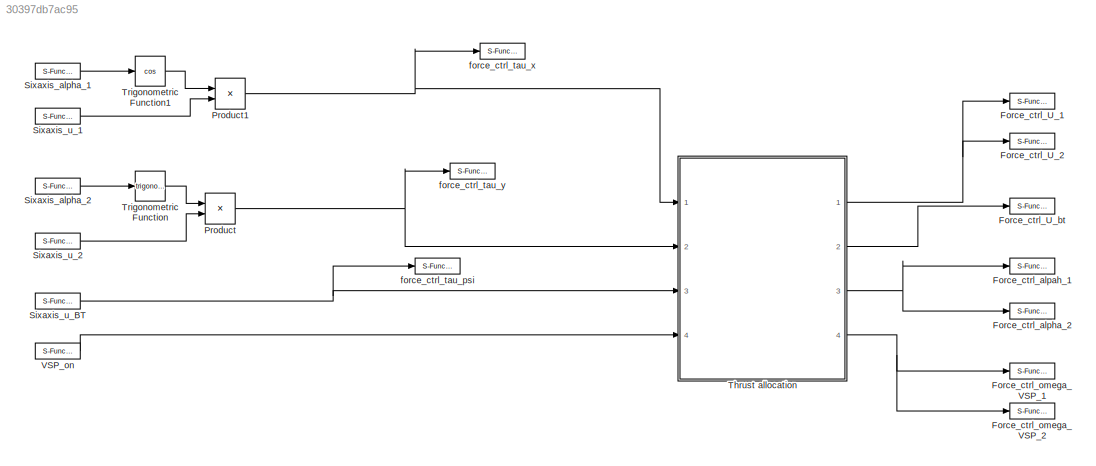
MODEL slx_30397db7ac95
KIND model
BLOCK [S-Function] Force_ctrl_U_1
  CopyFcn = NIVeriStand_MDL_functions('', 'IO_copy');
  DeleteFcn = NIVeriStand_MDL_functions('', 'IO_delete');
  EnableBusSupport = off
  FunctionName = NIVeriStandIO
  MoveFcn = set_param(gcb, 'Mask', 'on');
  Parameters = width dtype portnum stime stype btype
  Ports = [1]
  Priority = 4
BLOCK [S-Function] Force_ctrl_U_2
  CopyFcn = NIVeriStand_MDL_functions('', 'IO_copy');
  DeleteFcn = NIVeriStand_MDL_functions('', 'IO_delete');
  EnableBusSupport = off
  FunctionName = NIVeriStandIO
  MoveFcn = set_param(gcb, 'Mask', 'on');
  Parameters = width dtype portnum stime stype btype
  Ports = [1]
  Priority = 5
BLOCK [S-Function] Force_ctrl_U_bt
  CopyFcn = NIVeriStand_MDL_functions('', 'IO_copy');
  DeleteFcn = NIVeriStand_MDL_functions('', 'IO_delete');
  EnableBusSupport = off
  FunctionName = NIVeriStandIO
  MoveFcn = set_param(gcb, 'Mask', 'on');
  Parameters = width dtype portnum stime stype btype
  Ports = [1]
  Priority = 1
BLOCK [S-Function] Force_ctrl_alpah_1
  CopyFcn = NIVeriStand_MDL_functions('', 'IO_copy');
  DeleteFcn = NIVeriStand_MDL_functions('', 'IO_delete');
  EnableBusSupport = off
  FunctionName = NIVeriStandIO
  MoveFcn = set_param(gcb, 'Mask', 'on');
  Parameters = width dtype portnum stime stype btype
  Ports = [1]
  Priority = 6
BLOCK [S-Function] Force_ctrl_alpha_2
  CopyFcn = NIVeriStand_MDL_functions('', 'IO_copy');
  DeleteFcn = NIVeriStand_MDL_functions('', 'IO_delete');
  EnableBusSupport = off
  FunctionName = NIVeriStandIO
  MoveFcn = set_param(gcb, 'Mask', 'on');
  Parameters = width dtype portnum stime stype btype
  Ports = [1]
  Priority = 7
BLOCK [S-Function] Force_ctrl_omega_VSP_1
  CopyFcn = NIVeriStand_MDL_functions('', 'IO_copy');
  DeleteFcn = NIVeriStand_MDL_functions('', 'IO_delete');
  EnableBusSupport = off
  FunctionName = NIVeriStandIO
  MoveFcn = set_param(gcb, 'Mask', 'on');
  Parameters = width dtype portnum stime stype btype
  Ports = [1]
  Priority = 2
BLOCK [S-Function] Force_ctrl_omega_VSP_2
  CopyFcn = NIVeriStand_MDL_functions('', 'IO_copy');
  DeleteFcn = NIVeriStand_MDL_functions('', 'IO_delete');
  EnableBusSupport = off
  FunctionName = NIVeriStandIO
  MoveFcn = set_param(gcb, 'Mask', 'on');
  Parameters = width dtype portnum stime stype btype
  Ports = [1]
  Priority = 3
BLOCK [Product] Product
  InputSameDT = off
  OutDataTypeStr = Inherit: Inherit via internal rule
  Ports = [2, 1]
  RndMeth = Floor
  SaturateOnIntegerOverflow = off
BLOCK [Product] Product1
  InputSameDT = off
  OutDataTypeStr = Inherit: Inherit via internal rule
  Ports = [2, 1]
  RndMeth = Floor
  SaturateOnIntegerOverflow = off
BLOCK [S-Function] Sixaxis_alpha_1
  CopyFcn = NIVeriStand_MDL_functions('', 'IO_copy');
  DeleteFcn = NIVeriStand_MDL_functions('', 'IO_delete');
  EnableBusSupport = off
  FunctionName = NIVeriStandIO
  MoveFcn = set_param(gcb, 'Mask', 'on');
  Parameters = width dtype portnum stime stype btype
  Ports = [0, 1]
  Priority = 1
BLOCK [S-Function] Sixaxis_alpha_2
  CopyFcn = NIVeriStand_MDL_functions('', 'IO_copy');
  DeleteFcn = NIVeriStand_MDL_functions('', 'IO_delete');
  EnableBusSupport = off
  FunctionName = NIVeriStandIO
  MoveFcn = set_param(gcb, 'Mask', 'on');
  Parameters = width dtype portnum stime stype btype
  Ports = [0, 1]
  Priority = 3
BLOCK [S-Function] Sixaxis_u_1
  CopyFcn = NIVeriStand_MDL_functions('', 'IO_copy');
  DeleteFcn = NIVeriStand_MDL_functions('', 'IO_delete');
  EnableBusSupport = off
  FunctionName = NIVeriStandIO
  MoveFcn = set_param(gcb, 'Mask', 'on');
  Parameters = width dtype portnum stime stype btype
  Ports = [0, 1]
  Priority = 2
BLOCK [S-Function] Sixaxis_u_2
  CopyFcn = NIVeriStand_MDL_functions('', 'IO_copy');
  DeleteFcn = NIVeriStand_MDL_functions('', 'IO_delete');
  EnableBusSupport = off
  FunctionName = NIVeriStandIO
  MoveFcn = set_param(gcb, 'Mask', 'on');
  Parameters = width dtype portnum stime stype btype
  Ports = [0, 1]
  Priority = 4
BLOCK [S-Function] Sixaxis_u_BT
  CopyFcn = NIVeriStand_MDL_functions('', 'IO_copy');
  DeleteFcn = NIVeriStand_MDL_functions('', 'IO_delete');
  EnableBusSupport = off
  FunctionName = NIVeriStandIO
  MoveFcn = set_param(gcb, 'Mask', 'on');
  Parameters = width dtype portnum stime stype btype
  Ports = [0, 1]
  Priority = 5
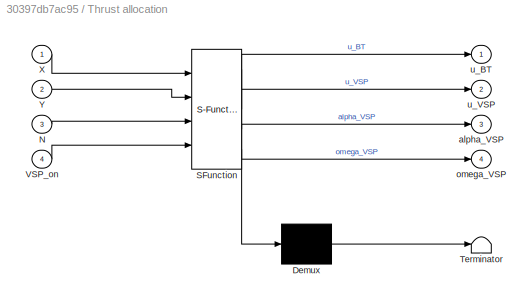
BLOCK [SubSystem] Thrust allocation
  ErrorFcn = Stateflow.Translate.translate
  PermitHierarchicalResolution = ExplicitOnly
  Ports = [4, 4]
  RequestExecContextInheritance = off
  SFBlockType = MATLAB Function
  TreatAsAtomicUnit = on
BLOCK [Demux] Thrust allocation/ Demux 
  Outputs = 1
  Ports = [1, 1]
BLOCK [S-Function] Thrust allocation/ SFunction 
  EnableBusSupport = on
  FunctionName = sf_sfun
  PortCounts = [4 5]
  Ports = [4, 5]
  Tag = Stateflow S-Function Force_ctrl_sixaxis 1
BLOCK [Terminator] Thrust allocation/ Terminator 
BLOCK [Inport] Thrust allocation/N
  IconDisplay = Port number
  Port = 3
BLOCK [Inport] Thrust allocation/VSP_on
  IconDisplay = Port number
  Port = 4
BLOCK [Inport] Thrust allocation/X
  IconDisplay = Port number
BLOCK [Inport] Thrust allocation/Y
  IconDisplay = Port number
  Port = 2
BLOCK [Outport] Thrust allocation/alpha_VSP
  IconDisplay = Port number
  Port = 3
BLOCK [Outport] Thrust allocation/omega_VSP
  IconDisplay = Port number
  Port = 4
BLOCK [Outport] Thrust allocation/u_BT
  IconDisplay = Port number
BLOCK [Outport] Thrust allocation/u_VSP
  IconDisplay = Port number
  Port = 2
BLOCK [Trigonometry] Trigonometric Function
  Ports = [1, 1]
BLOCK [Trigonometry] Trigonometric Function1
  Operator = cos
  Ports = [1, 1]
BLOCK [S-Function] VSP_on
  CopyFcn = NIVeriStand_MDL_functions('', 'IO_copy');
  DeleteFcn = NIVeriStand_MDL_functions('', 'IO_delete');
  EnableBusSupport = off
  FunctionName = NIVeriStandIO
  MoveFcn = set_param(gcb, 'Mask', 'on');
  Parameters = width dtype portnum stime stype btype
  Ports = [0, 1]
  Priority = 6
BLOCK [S-Function] force_ctrl_tau_psi
  CopyFcn = NIVeriStand_MDL_functions('', 'IO_copy');
  DeleteFcn = NIVeriStand_MDL_functions('', 'IO_delete');
  EnableBusSupport = off
  FunctionName = NIVeriStandIO
  MoveFcn = set_param(gcb, 'Mask', 'on');
  Parameters = width dtype portnum stime stype btype
  Ports = [1]
  Priority = 10
BLOCK [S-Function] force_ctrl_tau_x
  CopyFcn = NIVeriStand_MDL_functions('', 'IO_copy');
  DeleteFcn = NIVeriStand_MDL_functions('', 'IO_delete');
  EnableBusSupport = off
  FunctionName = NIVeriStandIO
  MoveFcn = set_param(gcb, 'Mask', 'on');
  Parameters = width dtype portnum stime stype btype
  Ports = [1]
  Priority = 8
BLOCK [S-Function] force_ctrl_tau_y
  CopyFcn = NIVeriStand_MDL_functions('', 'IO_copy');
  DeleteFcn = NIVeriStand_MDL_functions('', 'IO_delete');
  EnableBusSupport = off
  FunctionName = NIVeriStandIO
  MoveFcn = set_param(gcb, 'Mask', 'on');
  Parameters = width dtype portnum stime stype btype
  Ports = [1]
  Priority = 9
NET Product1:1 -> Thrust allocation:1, force_ctrl_tau_x:1
NET Product:1 -> Thrust allocation:2, force_ctrl_tau_y:1
LINE Sixaxis_alpha_1:1 -> Trigonometric Function1:1
LINE Sixaxis_alpha_2:1 -> Trigonometric Function:1
LINE Sixaxis_u_1:1 -> Product1:2
LINE Sixaxis_u_2:1 -> Product:2
NET Sixaxis_u_BT:1 -> Thrust allocation:3, force_ctrl_tau_psi:1
NET Thrust allocation:1 -> Force_ctrl_U_1:1, Force_ctrl_U_2:1
LINE Thrust allocation:2 -> Force_ctrl_U_bt:1
NET Thrust allocation:3 -> Force_ctrl_alpah_1:1, Force_ctrl_alpha_2:1
NET Thrust allocation:4 -> Force_ctrl_omega_VSP_1:1, Force_ctrl_omega_VSP_2:1
LINE Trigonometric Function1:1 -> Product1:1
LINE Trigonometric Function:1 -> Product:1
LINE VSP_on:1 -> Thrust allocation:4
note: NET lines group one-source signal fan-out (src -> all destinations, sorted); 1:1 wires keep LINE
CHART Thruster allocation/Thrust allocation states=1 transitions=1
  STATE_LABEL 'eML_blk_kernel()'
  STATE_LABEL 'SCRIPT:\nfunction [u_BT,u_VSP,alpha_VSP] = fcn(tau_x,tau_y,tau_psi,l_BT,l_VSP)\n\ntau_trans = abs(tau_x) + abs(tau_y)\n\n% Burde den over vært sqrt(tau_x*2 + tau_y*2)?\n\nu_VSP_trans     = tau_trans;\nalpha_VSP_trans = atan2(tau_y,tau_x);\nu_BT_trans      = tau_trans*sin(alpha_VSP_trans)*l_VSP/l_BT;\n\nu_VSP_rot     = abs(tau_psi)      /l_VSP;\nalpha_VSP_rot = sign(-tau_psi)*pi/2;\nu_BT_rot      = tau_psi     ...<+130ch>'
